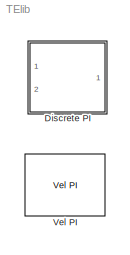
MODEL TElib
KIND library
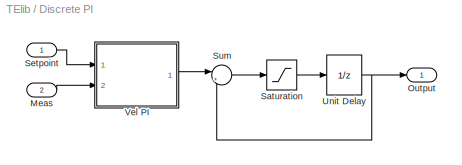
BLOCK [SubSystem] Discrete PI
  MaskCallbackString = |||||
  MaskEnableString = on,on,on,on,on,on
  MaskIconFrame = on
  MaskIconOpaque = on
  MaskIconRotate = none
  MaskIconUnits = autoscale
  MaskPromptString = Kc|Ti|Ts|x0|Hi|Lo
  MaskStyleString = edit,edit,edit,edit,edit,edit
  MaskToolTipString = on,on,on,on,on,on
  MaskTunableValueString = on,on,on,on,on,on
  MaskValueString = 0|inf|1|0|1|-1
  MaskVarAliasString = ,,,,,
  MaskVariables = Kc=@1;Ti=@2;Ts=@3;x0=@4;Hi=@5;Lo=@6;
  MaskVisibilityString = on,on,on,on,on,on
  Ports = [2, 1]
  TreatAsAtomicUnit = off
BLOCK [Inport] Discrete PI/Meas
  Port = 2
BLOCK [Outport] Discrete PI/Output
BLOCK [Saturate] Discrete PI/Saturation
  LowerLimit = Lo
  UpperLimit = Hi
BLOCK [Inport] Discrete PI/Setpoint
BLOCK [Sum] Discrete PI/Sum
  IconShape = round
  InputSameDT = off
  Inputs = |++
  OutDataTypeMode = Inherit via internal rule
  Ports = [2, 1]
BLOCK [UnitDelay] Discrete PI/Unit Delay
  SampleTime = Ts
  X0 = x0
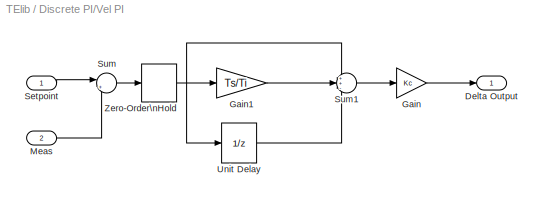
BLOCK [SubSystem] Discrete PI/Vel PI
  MaskCallbackString = ||
  MaskEnableString = on,on,on
  MaskIconFrame = on
  MaskIconOpaque = on
  MaskIconRotate = none
  MaskIconUnits = autoscale
  MaskPromptString = Kc|Ti|Ts
  MaskStyleString = edit,edit,edit
  MaskToolTipString = on,on,on
  MaskTunableValueString = on,on,on
  MaskValueString = Kc|Ti|Ts
  MaskVarAliasString = ,,
  MaskVariables = Kc=@1;Ti=@2;Ts=@3;
  MaskVisibilityString = on,on,on
  Ports = [2, 1]
  TreatAsAtomicUnit = off
BLOCK [Outport] Discrete PI/Vel PI/Delta Output
BLOCK [Gain] Discrete PI/Vel PI/Gain
  Gain = Kc
BLOCK [Gain] Discrete PI/Vel PI/Gain1
  Gain = Ts/Ti
BLOCK [Inport] Discrete PI/Vel PI/Meas
  Port = 2
BLOCK [Inport] Discrete PI/Vel PI/Setpoint
BLOCK [Sum] Discrete PI/Vel PI/Sum
  IconShape = round
  InputSameDT = off
  Inputs = |+-
  OutDataTypeMode = Inherit via internal rule
  Ports = [2, 1]
BLOCK [Sum] Discrete PI/Vel PI/Sum1
  IconShape = round
  InputSameDT = off
  Inputs = ++-
  OutDataTypeMode = Inherit via internal rule
  Ports = [3, 1]
BLOCK [UnitDelay] Discrete PI/Vel PI/Unit Delay
  SampleTime = Ts
BLOCK [ZeroOrderHold] Discrete PI/Vel PI/Zero-Order\nHold
  SampleTime = Ts
BLOCK [Reference] Vel PI  REF=TElib/Discrete PI/Vel PI
  Kc = Kc
  Ports = [2, 1]
  SourceBlock = TElib/Discrete PI/Vel PI
  Ti = Ti
  Ts = Ts
LINE Discrete PI/Meas:1 -> Discrete PI/Vel PI:2
LINE Discrete PI/Saturation:1 -> Discrete PI/Unit Delay:1
LINE Discrete PI/Setpoint:1 -> Discrete PI/Vel PI:1
LINE Discrete PI/Sum:1 -> Discrete PI/Saturation:1
NET Discrete PI/Unit Delay:1 -> Discrete PI/Output:1, Discrete PI/Sum:2
LINE Discrete PI/Vel PI/Gain1:1 -> Discrete PI/Vel PI/Sum1:2
LINE Discrete PI/Vel PI/Gain:1 -> Discrete PI/Vel PI/Delta Output:1
LINE Discrete PI/Vel PI/Meas:1 -> Discrete PI/Vel PI/Sum:2
LINE Discrete PI/Vel PI/Setpoint:1 -> Discrete PI/Vel PI/Sum:1
LINE Discrete PI/Vel PI/Sum1:1 -> Discrete PI/Vel PI/Gain:1
LINE Discrete PI/Vel PI/Sum:1 -> Discrete PI/Vel PI/Zero-Order\nHold:1
LINE Discrete PI/Vel PI/Unit Delay:1 -> Discrete PI/Vel PI/Sum1:3
NET Discrete PI/Vel PI/Zero-Order\nHold:1 -> Discrete PI/Vel PI/Gain1:1, Discrete PI/Vel PI/Sum1:1, Discrete PI/Vel PI/Unit Delay:1
LINE Discrete PI/Vel PI:1 -> Discrete PI/Sum:1
note: NET lines group one-source signal fan-out (src -> all destinations, sorted); 1:1 wires keep LINE
